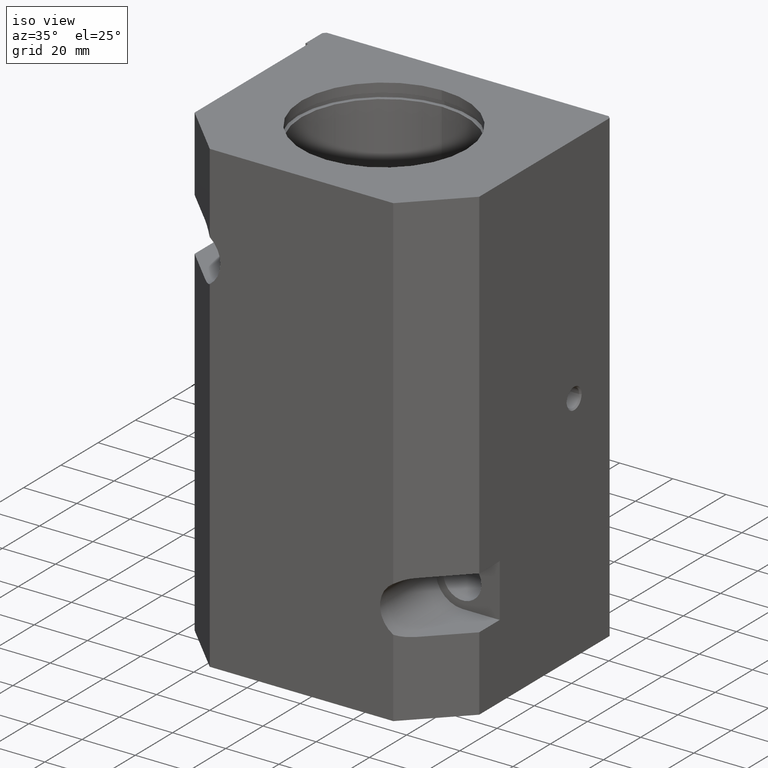
[diagram: clean part render]
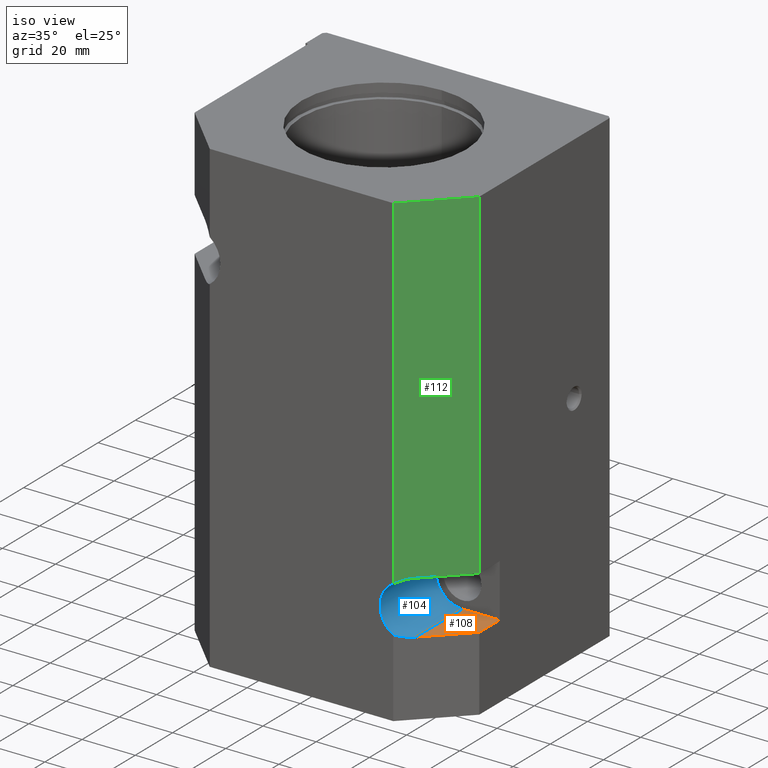
[diagram: same view with three faces highlighted in distinct colors, each labeled with its STEP entity id]
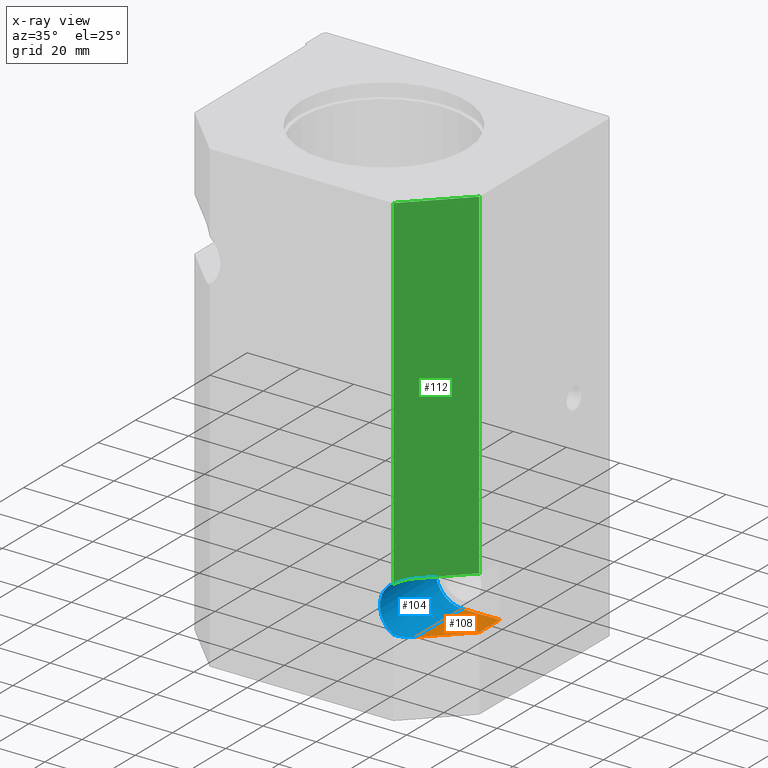
[diagram: x-ray of the same camera — body ghosted, the three highlighted faces saturated]
A machine part, iso view with three faces highlighted in distinct colors.
The next image is the same camera in x-ray (body ghosted, the three faces saturated) — at least one of them is partly hidden behind the body in this view.
Their STEP definitions:

[orange] entity #108 — the highlighted planar face has unit normal (0, 0, -1).
#108 = ADVANCED_FACE( '', ( #210 ), #211, .F. );
#210 = FACE_OUTER_BOUND( '', #353, .T. );
#211 = PLANE( '', #354 );
#353 = EDGE_LOOP( '', ( #662, #663, #664, #665 ) );
#354 = AXIS2_PLACEMENT_3D( '', #666, #667, #668 );
#662 = ORIENTED_EDGE( '', *, *, #1008, .F. );
#663 = ORIENTED_EDGE( '', *, *, #1009, .F. );
#664 = ORIENTED_EDGE( '', *, *, #1004, .F. );
#665 = ORIENTED_EDGE( '', *, *, #997, .F. );
#666 = CARTESIAN_POINT( '', ( 40.0000000000000, 0.000000000000000, 28.0000000000000 ) );
#667 = DIRECTION( '', ( 0.000000000000000, 0.000000000000000, -1.00000000000000 ) );
#668 = DIRECTION( '', ( -1.00000000000000, 0.000000000000000, 0.000000000000000 ) );
#997 = EDGE_CURVE( '', #1210, #1212, #1213, .T. );
#1004 = EDGE_CURVE( '', #1212, #1223, #1225, .T. );
#1008 = EDGE_CURVE( '', #1231, #1210, #1232, .T. );
#1009 = EDGE_CURVE( '', #1223, #1231, #1233, .T. );
#1210 = VERTEX_POINT( '', #1544 );
#1212 = VERTEX_POINT( '', #1546 );
#1213 = LINE( '', #1547, #1548 );
#1223 = VERTEX_POINT( '', #1561 );
#1225 = LINE( '', #1564, #1565 );
#1231 = VERTEX_POINT( '', #1574 );
#1232 = LINE( '', #1575, #1576 );
#1233 = LINE( '', #1577, #1578 );
#1544 = CARTESIAN_POINT( '', ( 40.0000000000000, 5.00000000000000, 28.0000000000000 ) );
#1546 = CARTESIAN_POINT( '', ( 40.0000000000000, 30.0000000000000, 28.0000000000000 ) );
#1547 = CARTESIAN_POINT( '', ( 40.0000000000000, 0.000000000000000, 28.0000000000000 ) );
#1548 = VECTOR( '', #1865, 1.00000000000000 );
#1561 = CARTESIAN_POINT( '', ( 54.0000000000000, 30.0000000000000, 28.0000000000000 ) );
#1564 = CARTESIAN_POINT( '', ( 56.0000000000000, 30.0000000000000, 28.0000000000000 ) );
#1565 = VECTOR( '', #1876, 1.00000000000000 );
#1574 = CARTESIAN_POINT( '', ( 54.0000000000000, 19.0000000000000, 28.0000000000000 ) );
#1575 = CARTESIAN_POINT( '', ( 45.7500000000000, 10.7500000000000, 28.0000000000000 ) );
#1576 = VECTOR( '', #1880, 1.00000000000000 );
#1577 = CARTESIAN_POINT( '', ( 54.0000000000000, 44.5000000000000, 28.0000000000000 ) );
#1578 = VECTOR( '', #1881, 1.00000000000000 );
#1865 = DIRECTION( '', ( 0.000000000000000, 1.00000000000000, 0.000000000000000 ) );
#1876 = DIRECTION( '', ( 1.00000000000000, 0.000000000000000, 0.000000000000000 ) );
#1880 = DIRECTION( '', ( -0.707106781186548, -0.707106781186548, -0.000000000000000 ) );
#1881 = DIRECTION( '', ( 0.000000000000000, -1.00000000000000, 0.000000000000000 ) );

[blue] entity #104 — the highlighted cylindrical surface (edge-blend (fillet) strip) has radius 10 mm, axis along (-0, -1, -0).
#104 = ADVANCED_FACE( '', ( #200 ), #201, .F. );
#200 = FACE_OUTER_BOUND( '', #343, .T. );
#201 = CYLINDRICAL_SURFACE( '', #344, 10.0000000000000 );
#343 = EDGE_LOOP( '', ( #628, #629, #630, #631, #632, #633 ) );
#344 = AXIS2_PLACEMENT_3D( '', #634, #635, #636 );
#628 = ORIENTED_EDGE( '', *, *, #994, .F. );
#629 = ORIENTED_EDGE( '', *, *, #995, .F. );
#630 = ORIENTED_EDGE( '', *, *, #996, .F. );
#631 = ORIENTED_EDGE( '', *, *, #997, .T. );
#632 = ORIENTED_EDGE( '', *, *, #998, .F. );
#633 = ORIENTED_EDGE( '', *, *, #991, .F. );
#634 = CARTESIAN_POINT( '', ( 40.0000000000000, 0.000000000000000, 38.0000000000000 ) );
#635 = DIRECTION( '', ( -0.000000000000000, -1.00000000000000, -0.000000000000000 ) );
#636 = DIRECTION( '', ( 0.000000000000000, 0.000000000000000, -1.00000000000000 ) );
#991 = EDGE_CURVE( '', #1198, #1201, #1202, .T. );
#994 = EDGE_CURVE( '', #1206, #1198, #1207, .T. );
#995 = EDGE_CURVE( '', #1208, #1206, #1209, .T. );
#996 = EDGE_CURVE( '', #1210, #1208, #1211, .T. );
#997 = EDGE_CURVE( '', #1210, #1212, #1213, .T. );
#998 = EDGE_CURVE( '', #1201, #1212, #1214, .T. );
#1198 = VERTEX_POINT( '', #1528 );
#1201 = VERTEX_POINT( '', #1532 );
#1202 = LINE( '', #1533, #1534 );
#1206 = VERTEX_POINT( '', #1540 );
#1207 = ELLIPSE( '', #1541, 14.1421356237310, 10.0000000000000 );
#1208 = VERTEX_POINT( '', #1542 );
#1209 = CIRCLE( '', #1543, 10.0000000000000 );
#1210 = VERTEX_POINT( '', #1544 );
#1211 = ELLIPSE( '', #1545, 14.1421356237310, 10.0000000000000 );
#1212 = VERTEX_POINT( '', #1546 );
#1213 = LINE( '', #1547, #1548 );
#1214 = CIRCLE( '', #1549, 10.0000000000000 );
#1528 = CARTESIAN_POINT( '', ( 40.0000000000000, 5.00000000000000, 48.0000000000000 ) );
#1532 = CARTESIAN_POINT( '', ( 40.0000000000000, 30.0000000000000, 48.0000000000000 ) );
#1533 = CARTESIAN_POINT( '', ( 40.0000000000000, 0.000000000000000, 48.0000000000000 ) );
#1534 = VECTOR( '', #1853, 1.00000000000000 );
#1540 = CARTESIAN_POINT( '', ( 35.0000000000000, 0.000000000000000, 46.6602540378444 ) );
#1541 = AXIS2_PLACEMENT_3D( '', #1856, #1857, #1858 );
#1542 = CARTESIAN_POINT( '', ( 35.0000000000000, 0.000000000000000, 29.3397459621556 ) );
#1543 = AXIS2_PLACEMENT_3D( '', #1859, #1860, #1861 );
#1544 = CARTESIAN_POINT( '', ( 40.0000000000000, 5.00000000000000, 28.0000000000000 ) );
#1545 = AXIS2_PLACEMENT_3D( '', #1862, #1863, #1864 );
#1546 = CARTESIAN_POINT( '', ( 40.0000000000000, 30.0000000000000, 28.0000000000000 ) );
#1547 = CARTESIAN_POINT( '', ( 40.0000000000000, 0.000000000000000, 28.0000000000000 ) );
#1548 = VECTOR( '', #1865, 1.00000000000000 );
#1549 = AXIS2_PLACEMENT_3D( '', #1866, #1867, #1868 );
#1853 = DIRECTION( '', ( 0.000000000000000, 1.00000000000000, 0.000000000000000 ) );
#1856 = CARTESIAN_POINT( '', ( 40.0000000000000, 5.00000000000000, 38.0000000000000 ) );
#1857 = DIRECTION( '', ( -0.707106781186548, 0.707106781186548, 0.000000000000000 ) );
#1858 = DIRECTION( '', ( -0.707106781186547, -0.707106781186547, 0.000000000000000 ) );
#1859 = CARTESIAN_POINT( '', ( 40.0000000000000, 0.000000000000000, 38.0000000000000 ) );
#1860 = DIRECTION( '', ( -0.000000000000000, 1.00000000000000, 0.000000000000000 ) );
#1861 = DIRECTION( '', ( 0.000000000000000, 0.000000000000000, -1.00000000000000 ) );
#1862 = CARTESIAN_POINT( '', ( 40.0000000000000, 5.00000000000000, 38.0000000000000 ) );
#1863 = DIRECTION( '', ( -0.707106781186548, 0.707106781186548, 0.000000000000000 ) );
#1864 = DIRECTION( '', ( -0.707106781186547, -0.707106781186547, 0.000000000000000 ) );
#1865 = DIRECTION( '', ( 0.000000000000000, 1.00000000000000, 0.000000000000000 ) );
#1866 = CARTESIAN_POINT( '', ( 40.0000000000000, 30.0000000000000, 38.0000000000000 ) );
#1867 = DIRECTION( '', ( 0.000000000000000, -1.00000000000000, 0.000000000000000 ) );
#1868 = DIRECTION( '', ( 0.000000000000000, 0.000000000000000, -1.00000000000000 ) );

[green] entity #112 — the highlighted planar face has unit normal (0.7071, -0.7071, 0).
#112 = ADVANCED_FACE( '', ( #218 ), #219, .T. );
#218 = FACE_OUTER_BOUND( '', #361, .T. );
#219 = PLANE( '', #362 );
#361 = EDGE_LOOP( '', ( #693, #694, #695, #696, #697 ) );
#362 = AXIS2_PLACEMENT_3D( '', #698, #699, #700 );
#693 = ORIENTED_EDGE( '', *, *, #994, .T. );
#694 = ORIENTED_EDGE( '', *, *, #990, .T. );
#695 = ORIENTED_EDGE( '', *, *, #1019, .T. );
#696 = ORIENTED_EDGE( '', *, *, #1020, .T. );
#697 = ORIENTED_EDGE( '', *, *, #1021, .F. );
#698 = CARTESIAN_POINT( '', ( 54.0000000000000, 19.0000000000000, 0.000000000000000 ) );
#699 = DIRECTION( '', ( 0.707106781186548, -0.707106781186548, 0.000000000000000 ) );
#700 = DIRECTION( '', ( 0.707106781186548, 0.707106781186548, 0.000000000000000 ) );
#990 = EDGE_CURVE( '', #1198, #1199, #1200, .T. );
#994 = EDGE_CURVE( '', #1206, #1198, #1207, .T. );
#1019 = EDGE_CURVE( '', #1199, #1249, #1250, .T. );
#1020 = EDGE_CURVE( '', #1249, #1251, #1252, .T. );
#1021 = EDGE_CURVE( '', #1206, #1251, #1253, .T. );
#1198 = VERTEX_POINT( '', #1528 );
#1199 = VERTEX_POINT( '', #1529 );
#1200 = LINE( '', #1530, #1531 );
#1206 = VERTEX_POINT( '', #1540 );
#1207 = ELLIPSE( '', #1541, 14.1421356237310, 10.0000000000000 );
#1249 = VERTEX_POINT( '', #1600 );
#1250 = LINE( '', #1601, #1602 );
#1251 = VERTEX_POINT( '', #1603 );
#1252 = LINE( '', #1604, #1605 );
#1253 = LINE( '', #1606, #1607 );
#1528 = CARTESIAN_POINT( '', ( 40.0000000000000, 5.00000000000000, 48.0000000000000 ) );
#1529 = CARTESIAN_POINT( '', ( 54.0000000000000, 19.0000000000000, 48.0000000000000 ) );
#1530 = CARTESIAN_POINT( '', ( 50.2500000000000, 15.2500000000000, 48.0000000000000 ) );
#1531 = VECTOR( '', #1852, 1.00000000000000 );
#1540 = CARTESIAN_POINT( '', ( 35.0000000000000, 0.000000000000000, 46.6602540378444 ) );
#1541 = AXIS2_PLACEMENT_3D( '', #1856, #1857, #1858 );
#1600 = CARTESIAN_POINT( '', ( 54.0000000000000, 19.0000000000000, 176.000000000000 ) );
#1601 = CARTESIAN_POINT( '', ( 54.0000000000000, 19.0000000000000, 0.000000000000000 ) );
#1602 = VECTOR( '', #1897, 1.00000000000000 );
#1603 = CARTESIAN_POINT( '', ( 35.0000000000000, 0.000000000000000, 176.000000000000 ) );
#1604 = CARTESIAN_POINT( '', ( 35.0000000000000, 0.000000000000000, 176.000000000000 ) );
#1605 = VECTOR( '', #1898, 1.00000000000000 );
#1606 = CARTESIAN_POINT( '', ( 35.0000000000000, 0.000000000000000, 0.000000000000000 ) );
#1607 = VECTOR( '', #1899, 1.00000000000000 );
#1852 = DIRECTION( '', ( 0.707106781186548, 0.707106781186548, -0.000000000000000 ) );
#1856 = CARTESIAN_POINT( '', ( 40.0000000000000, 5.00000000000000, 38.0000000000000 ) );
#1857 = DIRECTION( '', ( -0.707106781186548, 0.707106781186548, 0.000000000000000 ) );
#1858 = DIRECTION( '', ( -0.707106781186547, -0.707106781186547, 0.000000000000000 ) );
#1897 = DIRECTION( '', ( 0.000000000000000, 0.000000000000000, 1.00000000000000 ) );
#1898 = DIRECTION( '', ( -0.707106781186547, -0.707106781186547, -0.000000000000000 ) );
#1899 = DIRECTION( '', ( 0.000000000000000, 0.000000000000000, 1.00000000000000 ) );